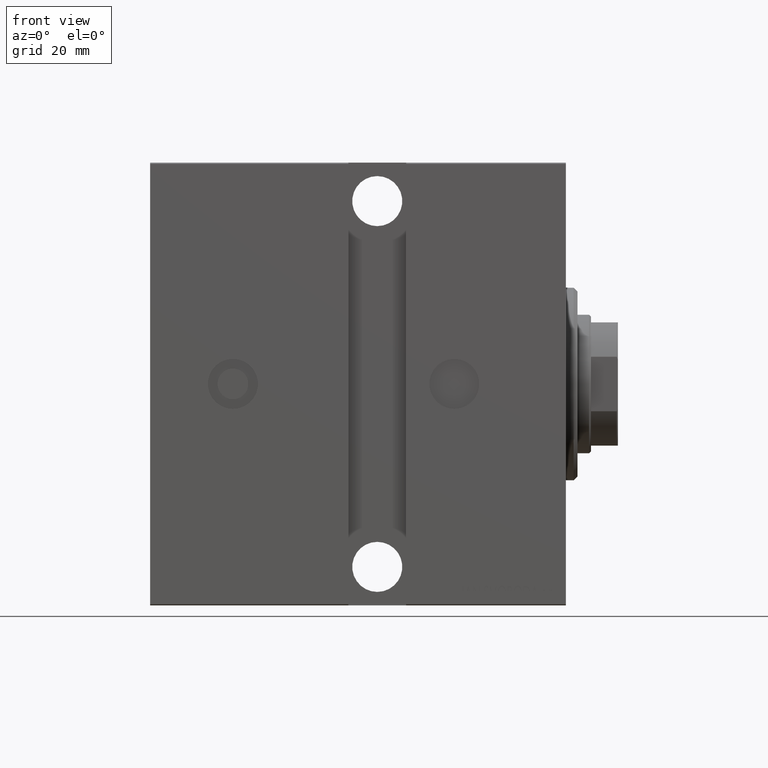
[diagram: clean part render]
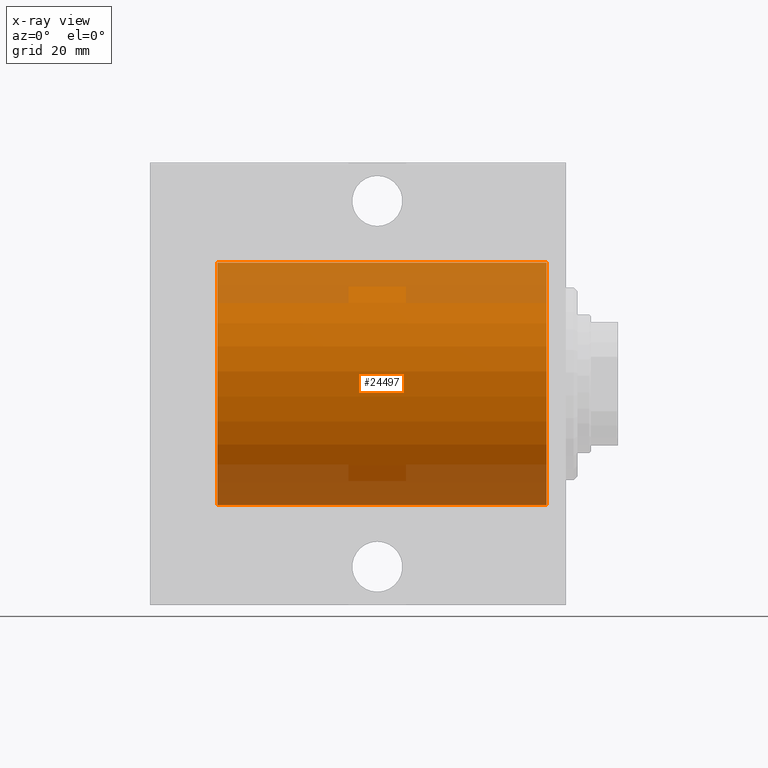
[diagram: x-ray — body ghosted, one internal face saturated and labeled with its STEP entity id]
A machine part, front view, then the same camera in x-ray: the body is ghosted and one INTERNAL B-rep face — a face not visible from any outside direction — is saturated and labeled: STEP entity #24497.
In plain terms, the highlighted cylindrical surface (partial cylindrical patch) has radius 31.5 mm, axis along (1, 0, -0).
Its self-contained STEP definition (entity closure, byte-faithful):
#783 = CARTESIAN_POINT ( 'NONE',  ( 90.50000000000000000, 0.000000000000000000, 0.000000000000000000 ) ) ;
#1385 = VECTOR ( 'NONE', #38040, 1000.000000000000000 ) ;
#2110 = CARTESIAN_POINT ( 'NONE',  ( 90.50000000000000000, 0.000000000000000000, 31.50000000000000000 ) ) ;
#2918 = EDGE_CURVE ( 'NONE', #37100, #34165, #42075, .T. ) ;
#5327 = VERTEX_POINT ( 'NONE', #21012 ) ;
#6563 = CARTESIAN_POINT ( 'NONE',  ( 90.50000000000000000, 0.000000000000000000, 0.000000000000000000 ) ) ;
#7732 = VERTEX_POINT ( 'NONE', #20103 ) ;
#9426 = AXIS2_PLACEMENT_3D ( 'NONE', #783, #37317, #27217 ) ;
#9910 = EDGE_LOOP ( 'NONE', ( #26676, #14341, #18488, #29622 ) ) ;
#13717 = DIRECTION ( 'NONE',  ( -1.000000000000000000, 0.000000000000000000, 0.000000000000000000 ) ) ;
#14341 = ORIENTED_EDGE ( 'NONE', *, *, #2918, .F. ) ;
#14585 = DIRECTION ( 'NONE',  ( 0.000000000000000000, 0.000000000000000000, 1.000000000000000000 ) ) ;
#17542 = CYLINDRICAL_SURFACE ( 'NONE', #9426, 31.50000000000000000 ) ;
#17794 = CARTESIAN_POINT ( 'NONE',  ( 5.000000000000004441, 0.000000000000000000, 0.000000000000000000 ) ) ;
#18488 = ORIENTED_EDGE ( 'NONE', *, *, #34488, .T. ) ;
#19661 = AXIS2_PLACEMENT_3D ( 'NONE', #17794, #13717, #14585 ) ;
#19664 = DIRECTION ( 'NONE',  ( -1.000000000000000000, 0.000000000000000000, 0.000000000000000000 ) ) ;
#19925 = VECTOR ( 'NONE', #31552, 1000.000000000000000 ) ;
#20103 = CARTESIAN_POINT ( 'NONE',  ( 5.000000000000004441, 0.000000000000000000, 31.50000000000000000 ) ) ;
#21012 = CARTESIAN_POINT ( 'NONE',  ( 5.000000000000004441, 3.857637417314162689E-15, -31.50000000000000000 ) ) ;
#21016 = CIRCLE ( 'NONE', #19661, 31.50000000000000000 ) ;
#22142 = EDGE_CURVE ( 'NONE', #7732, #5327, #21016, .T. ) ;
#24497 = ADVANCED_FACE ( 'NONE', ( #39895 ), #17542, .F. ) ;
#26676 = ORIENTED_EDGE ( 'NONE', *, *, #33384, .F. ) ;
#27217 = DIRECTION ( 'NONE',  ( 0.000000000000000000, 0.000000000000000000, 1.000000000000000000 ) ) ;
#27829 = DIRECTION ( 'NONE',  ( 0.000000000000000000, 0.000000000000000000, 1.000000000000000000 ) ) ;
#27939 = CARTESIAN_POINT ( 'NONE',  ( 90.50000000000000000, 3.857637417314162689E-15, -31.50000000000000000 ) ) ;
#28027 = CARTESIAN_POINT ( 'NONE',  ( 90.50000000000000000, 0.000000000000000000, 31.50000000000000000 ) ) ;
#28157 = LINE ( 'NONE', #27939, #1385 ) ;
#28534 = LINE ( 'NONE', #2110, #19925 ) ;
#29622 = ORIENTED_EDGE ( 'NONE', *, *, #22142, .T. ) ;
#29742 = AXIS2_PLACEMENT_3D ( 'NONE', #6563, #19664, #27829 ) ;
#31552 = DIRECTION ( 'NONE',  ( -1.000000000000000000, -0.000000000000000000, -0.000000000000000000 ) ) ;
#33384 = EDGE_CURVE ( 'NONE', #34165, #5327, #28157, .T. ) ;
#34165 = VERTEX_POINT ( 'NONE', #35029 ) ;
#34488 = EDGE_CURVE ( 'NONE', #37100, #7732, #28534, .T. ) ;
#35029 = CARTESIAN_POINT ( 'NONE',  ( 90.50000000000000000, 3.857637417314162689E-15, -31.50000000000000000 ) ) ;
#37100 = VERTEX_POINT ( 'NONE', #28027 ) ;
#37317 = DIRECTION ( 'NONE',  ( -1.000000000000000000, -0.000000000000000000, -0.000000000000000000 ) ) ;
#38040 = DIRECTION ( 'NONE',  ( -1.000000000000000000, -0.000000000000000000, -0.000000000000000000 ) ) ;
#39895 = FACE_OUTER_BOUND ( 'NONE', #9910, .T. ) ;
#42075 = CIRCLE ( 'NONE', #29742, 31.50000000000000000 ) ;